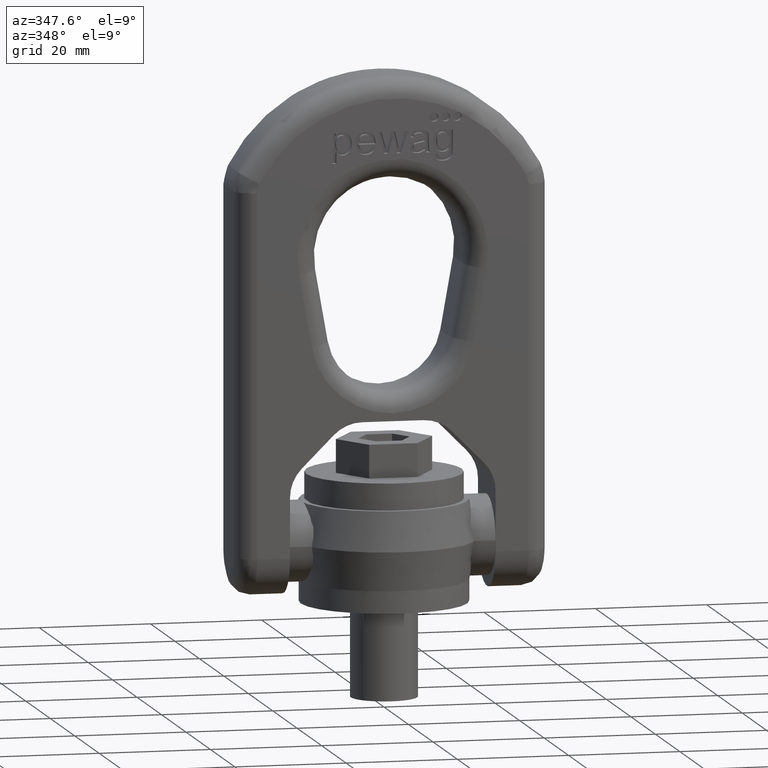
[diagram: clean part render]
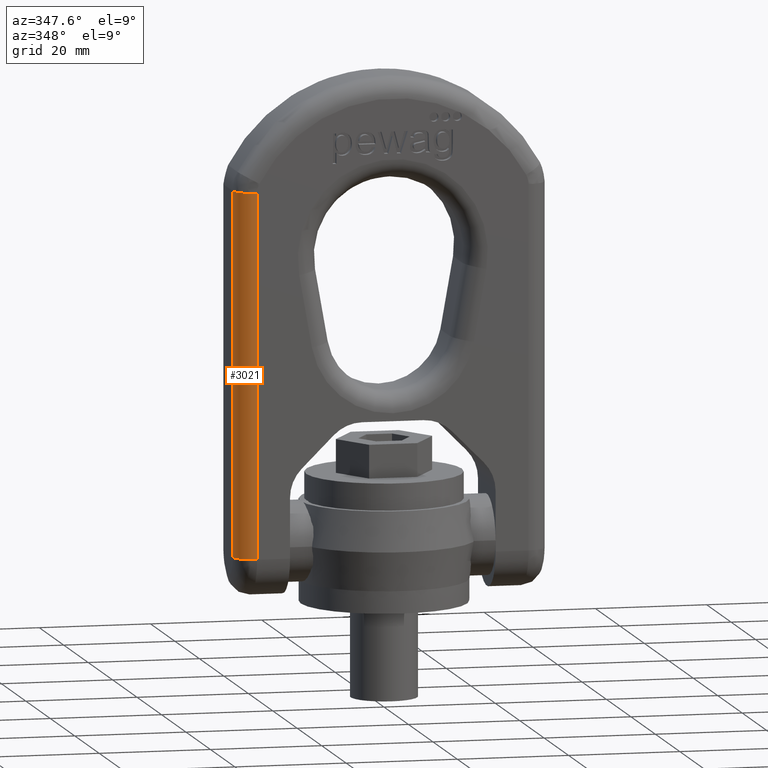
[diagram: same view with one face highlighted and labeled with its STEP entity id]
A machine part, auxiliary view. The second image highlights one B-rep face of the part: STEP entity #3021.
In plain terms, the highlighted cylindrical surface (edge-blend (fillet) strip) has radius 3.6 mm, axis along (0, 0, 1).
Its self-contained STEP definition (entity closure, byte-faithful):
#1777=LINE('',#7085,#2085);
#1866=LINE('',#7749,#2174);
#2085=VECTOR('',#6206,1.);
#2174=VECTOR('',#6349,1.);
#2646=FACE_OUTER_BOUND('',#3414,.T.);
#3021=ADVANCED_FACE('',(#2646),#3061,.T.);
#3061=CYLINDRICAL_SURFACE('',#6033,3.6);
#3414=EDGE_LOOP('',(#4621,#4622,#4623,#4624));
#4621=ORIENTED_EDGE('',*,*,#5730,.T.);
#4622=ORIENTED_EDGE('',*,*,#5184,.F.);
#4623=ORIENTED_EDGE('',*,*,#5731,.F.);
#4624=ORIENTED_EDGE('',*,*,#5363,.F.);
#4737=VERTEX_POINT('',#7055);
#4750=VERTEX_POINT('',#7084);
#4919=VERTEX_POINT('',#7743);
#4922=VERTEX_POINT('',#7748);
#5184=EDGE_CURVE('',#4750,#4737,#1777,.T.);
#5363=EDGE_CURVE('',#4922,#4919,#1866,.T.);
#5730=EDGE_CURVE('',#4922,#4737,#5808,.T.);
#5731=EDGE_CURVE('',#4919,#4750,#5809,.T.);
#5808=CIRCLE('',#6031,3.6);
#5809=CIRCLE('',#6032,3.6);
#6031=AXIS2_PLACEMENT_3D('',#9716,#6870,#6871);
#6032=AXIS2_PLACEMENT_3D('',#9733,#6872,#6873);
#6033=AXIS2_PLACEMENT_3D('',#9734,#6874,#6875);
#6206=DIRECTION('',(-1.4065325480893E-16,0.,-1.));
#6349=DIRECTION('',(1.4065325480893E-16,0.,1.));
#6870=DIRECTION('',(0.,0.,1.));
#6871=DIRECTION('',(1.,0.,0.));
#6872=DIRECTION('',(0.,0.,1.));
#6873=DIRECTION('',(1.,0.,0.));
#6874=DIRECTION('',(1.4065325480893E-16,0.,1.));
#6875=DIRECTION('',(1.,0.,0.));
#7055=CARTESIAN_POINT('',(-24.4,-7.2,9.20000000000003));
#7084=CARTESIAN_POINT('',(-24.4,-7.2,74.324996872654));
#7085=CARTESIAN_POINT('',(-24.4,-7.2,9.20000000000004));
#7743=CARTESIAN_POINT('',(-28.,-3.6,74.324996872654));
#7748=CARTESIAN_POINT('',(-28.,-3.6,9.20000000000003));
#7749=CARTESIAN_POINT('',(-28.,-3.6,74.324996872654));
#9716=CARTESIAN_POINT('',(-24.4,-3.59999999999994,9.20000000000003));
#9733=CARTESIAN_POINT('',(-24.4,-3.6,74.324996872654));
#9734=CARTESIAN_POINT('',(-24.4,-3.6,63.2222222222222));